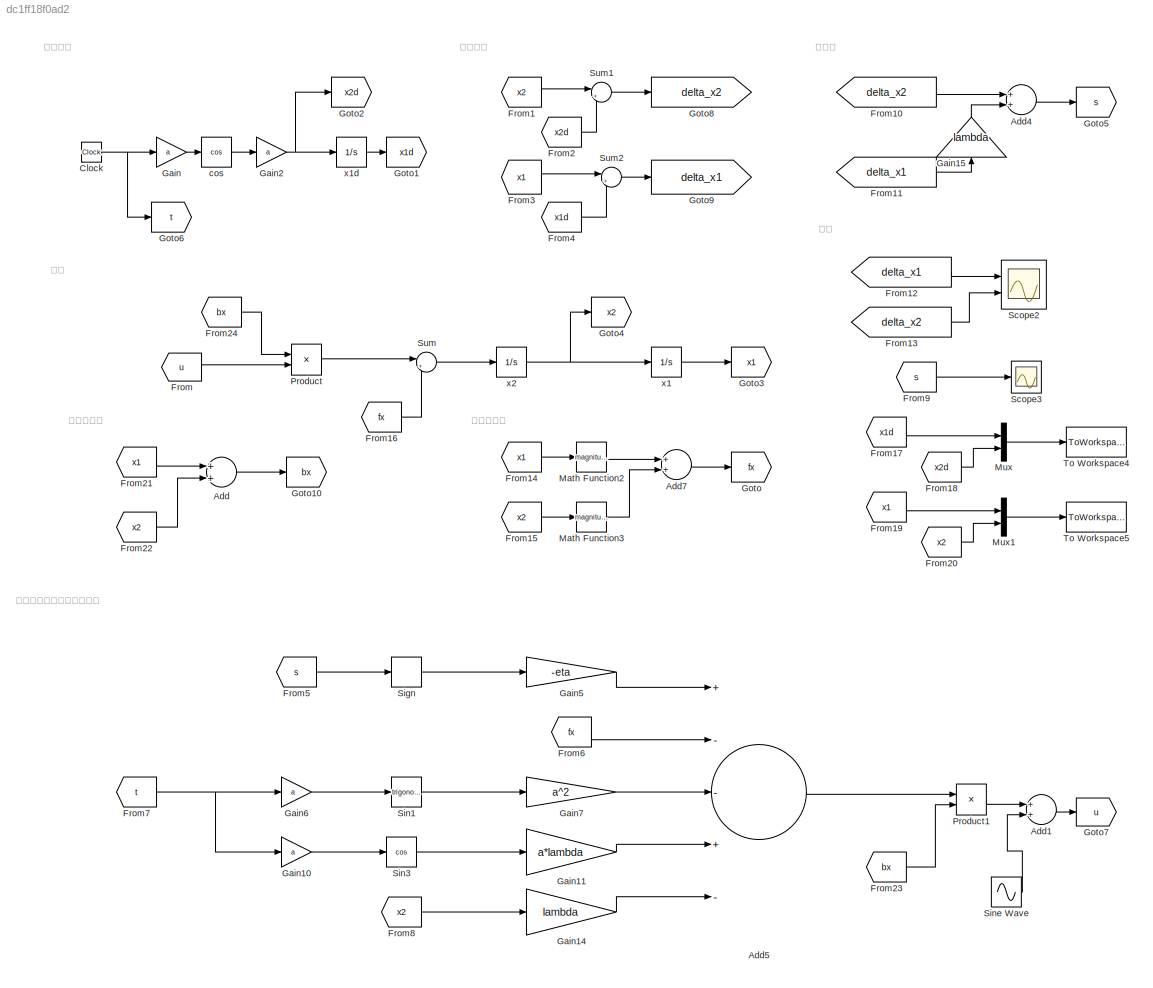
MODEL slx_dc1ff18f0ad2
KIND model
CONFIG AbsTol = auto
CONFIG EnableMultiTasking = off
CONFIG FixedStep = 0.01
CONFIG MaxStep = auto
CONFIG MinStep = auto
CONFIG RelTol = 1e-3
CONFIG SampleTimeConstraint = Unconstrained
CONFIG Solver = FixedStepAuto
CONFIG SolverName = FixedStepAuto
CONFIG StartTime = 0.0
CONFIG StopTime = 11
BLOCK [Sum] Add
  InputSameDT = off
  OutDataTypeStr = Inherit: Inherit via internal rule
  Ports = [2, 1]
  SaturateOnIntegerOverflow = off
BLOCK [Sum] Add1
  InputSameDT = off
  OutDataTypeStr = Inherit: Inherit via internal rule
  Ports = [2, 1]
  SaturateOnIntegerOverflow = off
BLOCK [Sum] Add4
  InputSameDT = off
  OutDataTypeStr = Inherit: Inherit via internal rule
  Ports = [2, 1]
  SaturateOnIntegerOverflow = off
BLOCK [Sum] Add5
  InputSameDT = off
  Inputs = +--+-
  OutDataTypeStr = Inherit: Inherit via internal rule
  Ports = [5, 1]
  SaturateOnIntegerOverflow = off
BLOCK [Sum] Add7
  InputSameDT = off
  OutDataTypeStr = Inherit: Inherit via internal rule
  Ports = [2, 1]
  SaturateOnIntegerOverflow = off
BLOCK [Clock] Clock
BLOCK [From] From
  GotoTag = u
BLOCK [From] From1
  GotoTag = x2
BLOCK [From] From10
  GotoTag = delta_x2
BLOCK [From] From11
  GotoTag = delta_x1
BLOCK [From] From12
  GotoTag = delta_x1
BLOCK [From] From13
  GotoTag = delta_x2
BLOCK [From] From14
  GotoTag = x1
BLOCK [From] From15
  GotoTag = x2
BLOCK [From] From16
  GotoTag = fx
BLOCK [From] From17
  GotoTag = x1d
BLOCK [From] From18
  GotoTag = x2d
BLOCK [From] From19
  GotoTag = x1
BLOCK [From] From2
  GotoTag = x2d
BLOCK [From] From20
  GotoTag = x2
BLOCK [From] From21
  GotoTag = x1
BLOCK [From] From22
  GotoTag = x2
BLOCK [From] From23
  GotoTag = bx
BLOCK [From] From24
  GotoTag = bx
BLOCK [From] From3
  GotoTag = x1
BLOCK [From] From4
  GotoTag = x1d
BLOCK [From] From5
  GotoTag = s
BLOCK [From] From6
  GotoTag = fx
BLOCK [From] From7
  GotoTag = t
BLOCK [From] From8
  GotoTag = x2
BLOCK [From] From9
  GotoTag = s
BLOCK [Gain] Gain
  Gain = a
  OutDataTypeStr = Inherit: Inherit via internal rule
  ParamDataTypeStr = Inherit: Inherit via internal rule
  SaturateOnIntegerOverflow = off
BLOCK [Gain] Gain10
  Gain = a
  OutDataTypeStr = Inherit: Inherit via internal rule
  ParamDataTypeStr = Inherit: Inherit via internal rule
  SaturateOnIntegerOverflow = off
BLOCK [Gain] Gain11
  Gain = a*lambda
  OutDataTypeStr = Inherit: Inherit via internal rule
  ParamDataTypeStr = Inherit: Inherit via internal rule
  SaturateOnIntegerOverflow = off
BLOCK [Gain] Gain14
  Gain = lambda
  OutDataTypeStr = Inherit: Inherit via internal rule
  ParamDataTypeStr = Inherit: Inherit via internal rule
  SaturateOnIntegerOverflow = off
BLOCK [Gain] Gain15
  Gain = lambda
  OutDataTypeStr = Inherit: Inherit via internal rule
  ParamDataTypeStr = Inherit: Inherit via internal rule
  SaturateOnIntegerOverflow = off
BLOCK [Gain] Gain2
  Gain = a
  OutDataTypeStr = Inherit: Inherit via internal rule
  ParamDataTypeStr = Inherit: Inherit via internal rule
  SaturateOnIntegerOverflow = off
BLOCK [Gain] Gain5
  Gain = -eta
  OutDataTypeStr = Inherit: Inherit via internal rule
  ParamDataTypeStr = Inherit: Inherit via internal rule
  SaturateOnIntegerOverflow = off
BLOCK [Gain] Gain6
  Gain = a
  OutDataTypeStr = Inherit: Inherit via internal rule
  ParamDataTypeStr = Inherit: Inherit via internal rule
  SaturateOnIntegerOverflow = off
BLOCK [Gain] Gain7
  Gain = a^2
  OutDataTypeStr = Inherit: Inherit via internal rule
  ParamDataTypeStr = Inherit: Inherit via internal rule
  SaturateOnIntegerOverflow = off
BLOCK [Goto] Goto
  GotoTag = fx
BLOCK [Goto] Goto1
  GotoTag = x1d
BLOCK [Goto] Goto10
  GotoTag = bx
BLOCK [Goto] Goto2
  GotoTag = x2d
BLOCK [Goto] Goto3
  GotoTag = x1
BLOCK [Goto] Goto4
  GotoTag = x2
BLOCK [Goto] Goto5
  GotoTag = s
BLOCK [Goto] Goto6
  GotoTag = t
BLOCK [Goto] Goto7
  GotoTag = u
BLOCK [Goto] Goto8
  GotoTag = delta_x2
BLOCK [Goto] Goto9
  GotoTag = delta_x1
BLOCK [Math] Math Function2
  Operator = magnitude^2
  Ports = [1, 1]
BLOCK [Math] Math Function3
  Operator = magnitude^2
  Ports = [1, 1]
BLOCK [Mux] Mux
  DisplayOption = bar
  Inputs = 2
  Ports = [2, 1]
BLOCK [Mux] Mux1
  DisplayOption = bar
  Inputs = 2
  Ports = [2, 1]
BLOCK [Product] Product
  InputSameDT = off
  OutDataTypeStr = Inherit: Inherit via internal rule
  Ports = [2, 1]
  RndMeth = Floor
  SaturateOnIntegerOverflow = off
BLOCK [Product] Product1
  InputSameDT = off
  Inputs = */
  OutDataTypeStr = Inherit: Inherit via internal rule
  Ports = [2, 1]
  RndMeth = Floor
  SaturateOnIntegerOverflow = off
BLOCK [Scope] Scope2
  NumInputPorts = 2
  Ports = [2]
  ScopeSpecificationString = Simulink.scopes.TimeScopeBlockCfg('CurrentConfiguration', extmgr.ConfigurationSet(extmgr.Configuration('Core','General UI',true),extmgr.Configuration('Core','Source UI',true),extmgr.Configuration('Sources','WiredSimulink',true,'DataLoggingVariableName','ScopeData1'),extmgr.Configuration('Visuals','Time Domain',true,'SerializedDisplays',{struct('MinYLimReal','-0.03841','MaxYLimReal','0.029','YLabel...<+1438ch>
BLOCK [Scope] Scope3
  NumInputPorts = 1
  Ports = [1]
  ScopeSpecificationString = Simulink.scopes.TimeScopeBlockCfg('CurrentConfiguration', extmgr.ConfigurationSet(extmgr.Configuration('Core','General UI',true),extmgr.Configuration('Core','Source UI',true),extmgr.Configuration('Sources','WiredSimulink',true),extmgr.Configuration('Visuals','Time Domain',true,'SerializedDisplays',{struct('MinYLimReal','-0.0679','MaxYLimReal','0.07011','YLabelReal','','MinYLimMag','0.00000','MaxYL...<+1398ch>
BLOCK [Signum] Sign
  ZeroCross = off
BLOCK [Trigonometry] Sin1
  Ports = [1, 1]
BLOCK [Trigonometry] Sin3
  Operator = cos
  Ports = [1, 1]
BLOCK [Sin] Sine Wave
  Amplitude = 0.1
  Bias = 0.02
  Frequency = 20
  Phase = 2
  Ports = [0, 1]
  SampleTime = 0
BLOCK [Sum] Sum
  IconShape = round
  InputSameDT = off
  Inputs = |++
  OutDataTypeStr = Inherit: Inherit via internal rule
  Ports = [2, 1]
  SaturateOnIntegerOverflow = off
BLOCK [Sum] Sum1
  IconShape = round
  InputSameDT = off
  Inputs = |+-
  OutDataTypeStr = Inherit: Inherit via internal rule
  Ports = [2, 1]
  SaturateOnIntegerOverflow = off
BLOCK [Sum] Sum2
  IconShape = round
  InputSameDT = off
  Inputs = |+-
  OutDataTypeStr = Inherit: Inherit via internal rule
  Ports = [2, 1]
  SaturateOnIntegerOverflow = off
BLOCK [ToWorkspace] To Workspace4
  FixptAsFi = on
  MaxDataPoints = inf
  Ports = [1]
  SampleTime = -1
  Save2DSignal = 3-D array (concatenate along third dimension)
  VariableName = xd
BLOCK [ToWorkspace] To Workspace5
  FixptAsFi = on
  MaxDataPoints = inf
  Ports = [1]
  SampleTime = -1
  Save2DSignal = 3-D array (concatenate along third dimension)
  VariableName = x
BLOCK [Trigonometry] cos
  Operator = cos
  Ports = [1, 1]
BLOCK [Integrator] x1
  InitialCondition = x1_0
  Ports = [1, 1]
BLOCK [Integrator] x1d
  Ports = [1, 1]
BLOCK [Integrator] x2
  InitialCondition = x2_0
  Ports = [1, 1]
ANNOTATION (root): 数据
ANNOTATION (root): 根据滑模控制设计的控制率
ANNOTATION (root): 滑模面
ANNOTATION (root): 状态非线性
ANNOTATION (root): 系统
ANNOTATION (root): 跟踪目标
ANNOTATION (root): 跟踪误差
ANNOTATION (root): 输入非线性
LINE Add1:1 -> Goto7:1
LINE Add4:1 -> Goto5:1
LINE Add5:1 -> Product1:1
LINE Add7:1 -> Goto:1
LINE Add:1 -> Goto10:1
NET Clock:1 -> Gain:1, Goto6:1
LINE From10:1 -> Add4:1
LINE From11:1 -> Gain15:1
LINE From12:1 -> Scope2:1
LINE From13:1 -> Scope2:2
LINE From14:1 -> Math Function2:1
LINE From15:1 -> Math Function3:1
LINE From16:1 -> Sum:2
LINE From17:1 -> Mux:1
LINE From18:1 -> Mux:2
LINE From19:1 -> Mux1:1
LINE From1:1 -> Sum1:1
LINE From20:1 -> Mux1:2
LINE From21:1 -> Add:1
LINE From22:1 -> Add:2
LINE From23:1 -> Product1:2
LINE From24:1 -> Product:1
LINE From2:1 -> Sum1:2
LINE From3:1 -> Sum2:1
LINE From4:1 -> Sum2:2
LINE From5:1 -> Sign:1
LINE From6:1 -> Add5:2
NET From7:1 -> Gain10:1, Gain6:1
LINE From8:1 -> Gain14:1
LINE From9:1 -> Scope3:1
LINE From:1 -> Product:2
LINE Gain10:1 -> Sin3:1
LINE Gain11:1 -> Add5:4
LINE Gain14:1 -> Add5:5
LINE Gain15:1 -> Add4:2
NET Gain2:1 -> Goto2:1, x1d:1
LINE Gain5:1 -> Add5:1
LINE Gain6:1 -> Sin1:1
LINE Gain7:1 -> Add5:3
LINE Gain:1 -> cos:1
LINE Math Function2:1 -> Add7:1
LINE Math Function3:1 -> Add7:2
LINE Mux1:1 -> To Workspace5:1
LINE Mux:1 -> To Workspace4:1
LINE Product1:1 -> Add1:1
LINE Product:1 -> Sum:1
LINE Sign:1 -> Gain5:1
LINE Sin1:1 -> Gain7:1
LINE Sin3:1 -> Gain11:1
LINE Sine Wave:1 -> Add1:2
LINE Sum1:1 -> Goto8:1
LINE Sum2:1 -> Goto9:1
LINE Sum:1 -> x2:1
LINE cos:1 -> Gain2:1
LINE x1:1 -> Goto3:1
LINE x1d:1 -> Goto1:1
NET x2:1 -> Goto4:1, x1:1
note: NET lines group one-source signal fan-out (src -> all destinations, sorted); 1:1 wires keep LINE
